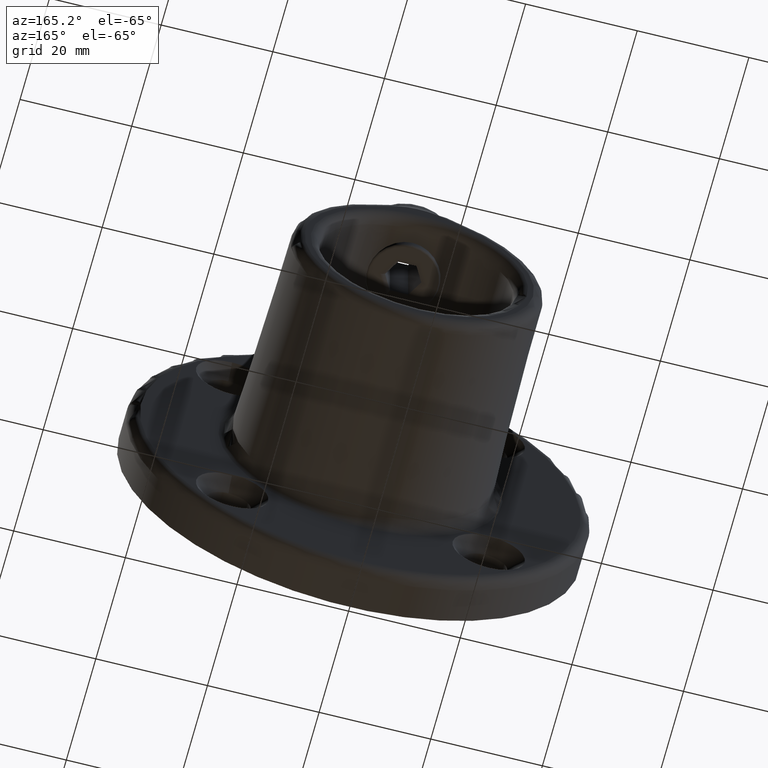
[diagram: clean part render]
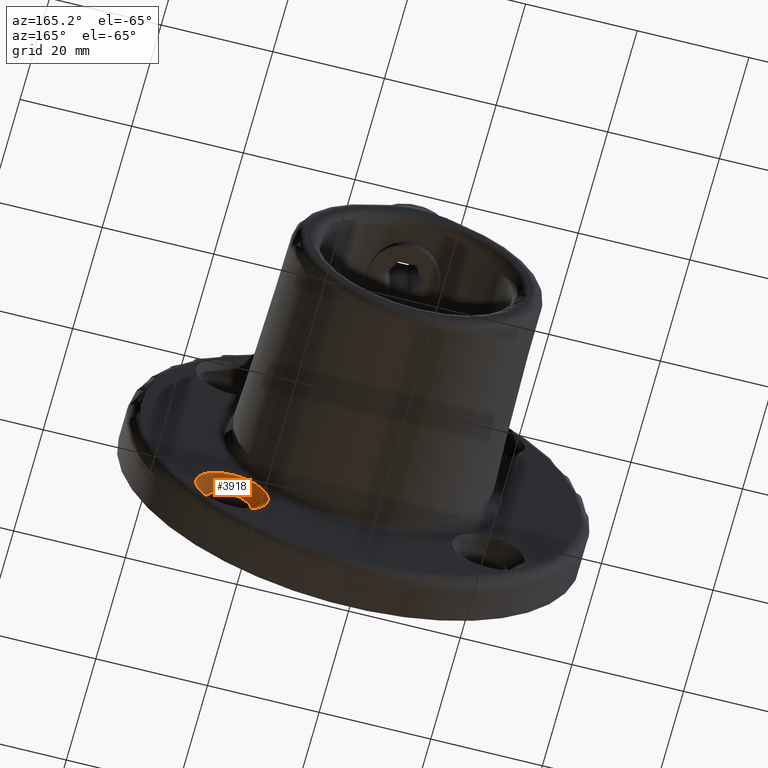
[diagram: same view with one face highlighted and labeled with its STEP entity id]
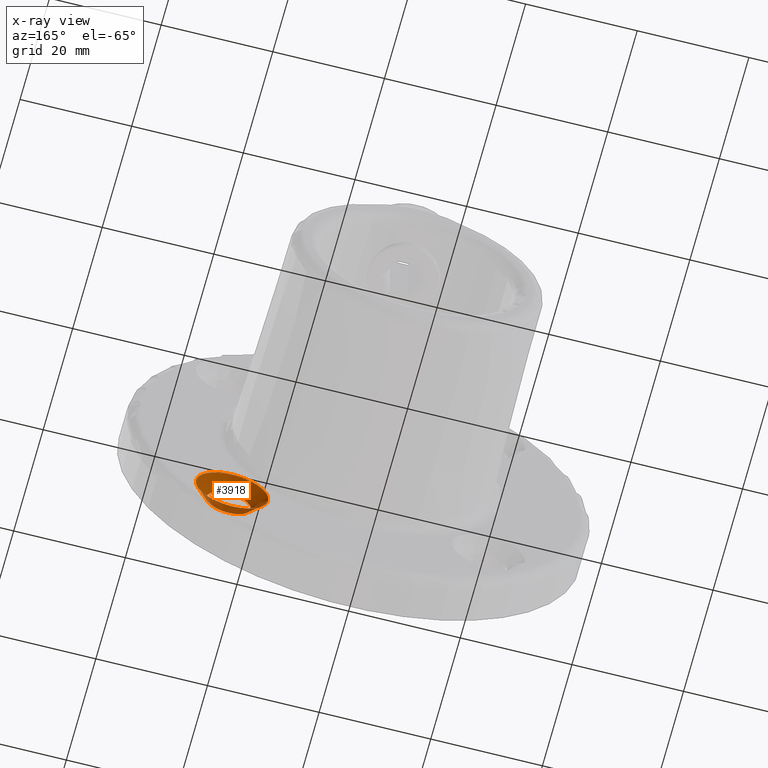
[diagram: x-ray of the same camera — body ghosted, the highlighted face saturated]
A machine part, auxiliary view. The second image highlights one B-rep face of the part: STEP entity #3918.
The next image is the same camera in x-ray: the body ghosted, the highlighted face saturated — about 0% of this face is hidden behind the body in this view.
In plain terms, the highlighted conical surface has half-angle 45 deg.
Its self-contained STEP definition (entity closure, byte-faithful):
#48 = DIRECTION ( 'NONE',  ( 0.000000000000000000, 1.000000000000000000, 0.000000000000000000 ) ) ;
#1152 = VERTEX_POINT ( 'NONE', #9851 ) ;
#3670 = DIRECTION ( 'NONE',  ( -0.000000000000000000, -1.000000000000000000, -0.000000000000000000 ) ) ;
#3918 = ADVANCED_FACE ( 'NONE', ( #6113, #8168 ), #13643, .F. ) ;
#3935 = AXIS2_PLACEMENT_3D ( 'NONE', #8011, #11288, #13459 ) ;
#4211 = CIRCLE ( 'NONE', #5316, 6.500000000000019540 ) ;
#4473 = EDGE_LOOP ( 'NONE', ( #5838 ) ) ;
#5107 = VERTEX_POINT ( 'NONE', #7700 ) ;
#5316 = AXIS2_PLACEMENT_3D ( 'NONE', #12413, #3670, #13456 ) ;
#5408 = EDGE_CURVE ( 'NONE', #1152, #1152, #13617, .T. ) ;
#5566 = CARTESIAN_POINT ( 'NONE',  ( 22.98097038856279184, 5.499999999999997335, -22.98097038856279895 ) ) ;
#5600 = EDGE_CURVE ( 'NONE', #5107, #5107, #4211, .T. ) ;
#5838 = ORIENTED_EDGE ( 'NONE', *, *, #5408, .F. ) ;
#6113 = FACE_OUTER_BOUND ( 'NONE', #13086, .T. ) ;
#7700 = CARTESIAN_POINT ( 'NONE',  ( 22.98097038856279184, 8.000000000000000000, -16.48097038856278118 ) ) ;
#7783 = DIRECTION ( 'NONE',  ( 0.000000000000000000, 0.000000000000000000, 1.000000000000000000 ) ) ;
#8011 = CARTESIAN_POINT ( 'NONE',  ( 22.98097038856279184, 5.499999999999997335, -22.98097038856279895 ) ) ;
#8168 = FACE_BOUND ( 'NONE', #4473, .T. ) ;
#8710 = AXIS2_PLACEMENT_3D ( 'NONE', #5566, #48, #7783 ) ;
#9851 = CARTESIAN_POINT ( 'NONE',  ( 22.98097038856279184, 5.499999999999997335, -18.98097038856279539 ) ) ;
#11288 = DIRECTION ( 'NONE',  ( 0.000000000000000000, 1.000000000000000000, 0.000000000000000000 ) ) ;
#11298 = ORIENTED_EDGE ( 'NONE', *, *, #5600, .F. ) ;
#12413 = CARTESIAN_POINT ( 'NONE',  ( 22.98097038856279184, 8.000000000000000000, -22.98097038856279895 ) ) ;
#13086 = EDGE_LOOP ( 'NONE', ( #11298 ) ) ;
#13456 = DIRECTION ( 'NONE',  ( 0.000000000000000000, 0.000000000000000000, 1.000000000000000000 ) ) ;
#13459 = DIRECTION ( 'NONE',  ( 0.000000000000000000, 0.000000000000000000, 1.000000000000000000 ) ) ;
#13617 = CIRCLE ( 'NONE', #8710, 4.000000000000003553 ) ;
#13643 = CONICAL_SURFACE ( 'NONE', #3935, 4.000000000000003553, 0.7853981633974510546 ) ;